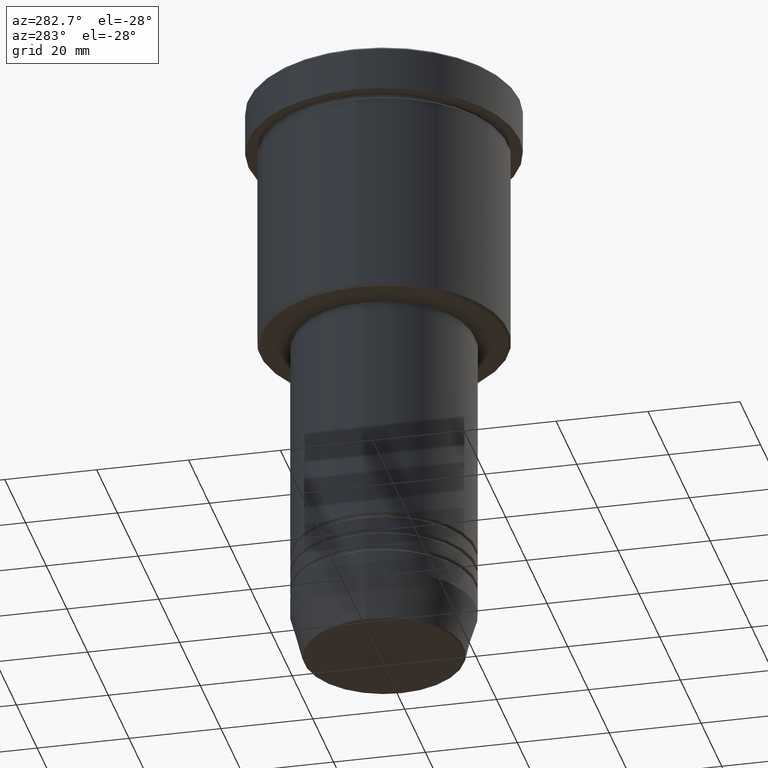
[diagram: clean part render]
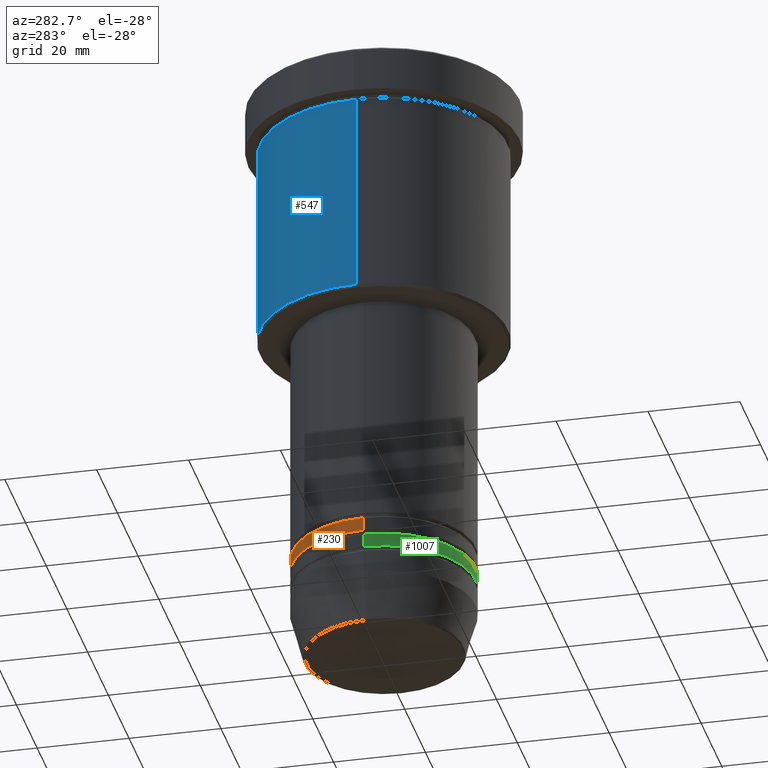
[diagram: same view with three faces highlighted in distinct colors, each labeled with its STEP entity id]
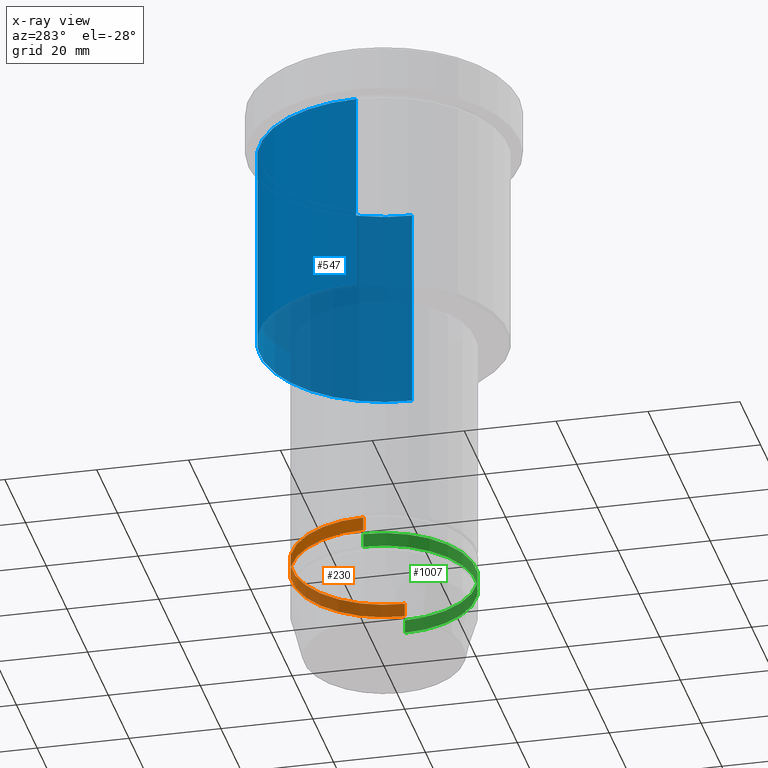
[diagram: x-ray of the same camera — body ghosted, the three highlighted faces saturated]
A machine part, auxiliary view with three faces highlighted in distinct colors.
The next image is the same camera in x-ray (body ghosted, the three faces saturated) — at least one of them is partly hidden behind the body in this view.
Their STEP definitions:

[orange] entity #230 — the highlighted cylindrical surface (partial cylindrical patch) has radius 20 mm, axis along (-0, -0, 1).
#9 = EDGE_CURVE ( 'NONE', #180, #1064, #184, .T. ) ;
#54 = ORIENTED_EDGE ( 'NONE', *, *, #905, .T. ) ;
#83 = CARTESIAN_POINT ( 'NONE',  ( -20.00000000000000355, 2.449293598294706907E-15, -110.9999999999999005 ) ) ;
#95 = DIRECTION ( 'NONE',  ( -0.000000000000000000, -0.000000000000000000, 1.000000000000000000 ) ) ;
#96 = EDGE_LOOP ( 'NONE', ( #54, #143, #1052, #241 ) ) ;
#141 = DIRECTION ( 'NONE',  ( -0.000000000000000000, -0.000000000000000000, 1.000000000000000000 ) ) ;
#143 = ORIENTED_EDGE ( 'NONE', *, *, #1159, .T. ) ;
#146 = DIRECTION ( 'NONE',  ( -0.000000000000000000, -0.000000000000000000, 1.000000000000000000 ) ) ;
#180 = VERTEX_POINT ( 'NONE', #306 ) ;
#184 = LINE ( 'NONE', #650, #366 ) ;
#230 = ADVANCED_FACE ( 'NONE', ( #966 ), #798, .T. ) ;
#241 = ORIENTED_EDGE ( 'NONE', *, *, #9, .F. ) ;
#306 = CARTESIAN_POINT ( 'NONE',  ( 20.00000000000000355, 0.000000000000000000, -110.9999999999999005 ) ) ;
#338 = CIRCLE ( 'NONE', #607, 20.00000000000000000 ) ;
#359 = CARTESIAN_POINT ( 'NONE',  ( -20.00000000000000355, 2.449293598294706907E-15, 0.000000000000000000 ) ) ;
#360 = VERTEX_POINT ( 'NONE', #83 ) ;
#366 = VECTOR ( 'NONE', #95, 1000.000000000000000 ) ;
#421 = DIRECTION ( 'NONE',  ( 1.000000000000000000, 0.000000000000000000, 0.000000000000000000 ) ) ;
#451 = LINE ( 'NONE', #359, #1066 ) ;
#529 = CARTESIAN_POINT ( 'NONE',  ( 0.000000000000000000, 0.000000000000000000, 0.000000000000000000 ) ) ;
#588 = CIRCLE ( 'NONE', #1065, 20.00000000000000355 ) ;
#607 = AXIS2_PLACEMENT_3D ( 'NONE', #664, #935, #1018 ) ;
#618 = CARTESIAN_POINT ( 'NONE',  ( 0.000000000000000000, 0.000000000000000000, -110.9999999999999005 ) ) ;
#650 = CARTESIAN_POINT ( 'NONE',  ( 20.00000000000000355, 0.000000000000000000, 0.000000000000000000 ) ) ;
#664 = CARTESIAN_POINT ( 'NONE',  ( 0.000000000000000000, 0.000000000000000000, -107.9999999999998863 ) ) ;
#712 = VERTEX_POINT ( 'NONE', #1057 ) ;
#798 = CYLINDRICAL_SURFACE ( 'NONE', #812, 20.00000000000000355 ) ;
#812 = AXIS2_PLACEMENT_3D ( 'NONE', #529, #146, #421 ) ;
#905 = EDGE_CURVE ( 'NONE', #180, #360, #588, .T. ) ;
#935 = DIRECTION ( 'NONE',  ( -0.000000000000000000, -0.000000000000000000, 1.000000000000000000 ) ) ;
#966 = FACE_OUTER_BOUND ( 'NONE', #96, .T. ) ;
#968 = CARTESIAN_POINT ( 'NONE',  ( 20.00000000000000000, 0.000000000000000000, -107.9999999999998863 ) ) ;
#988 = EDGE_CURVE ( 'NONE', #1064, #712, #338, .T. ) ;
#991 = DIRECTION ( 'NONE',  ( -0.000000000000000000, -0.000000000000000000, 1.000000000000000000 ) ) ;
#1018 = DIRECTION ( 'NONE',  ( 1.000000000000000000, 0.000000000000000000, 0.000000000000000000 ) ) ;
#1052 = ORIENTED_EDGE ( 'NONE', *, *, #988, .F. ) ;
#1057 = CARTESIAN_POINT ( 'NONE',  ( -20.00000000000000000, 2.449293598294706513E-15, -107.9999999999998863 ) ) ;
#1064 = VERTEX_POINT ( 'NONE', #968 ) ;
#1065 = AXIS2_PLACEMENT_3D ( 'NONE', #618, #141, #1153 ) ;
#1066 = VECTOR ( 'NONE', #991, 1000.000000000000000 ) ;
#1153 = DIRECTION ( 'NONE',  ( 1.000000000000000000, 0.000000000000000000, 0.000000000000000000 ) ) ;
#1159 = EDGE_CURVE ( 'NONE', #360, #712, #451, .T. ) ;

[blue] entity #547 — the highlighted cylindrical surface (partial cylindrical patch) has radius 27 mm, axis along (-0, -0, 1).
#2 = DIRECTION ( 'NONE',  ( -0.000000000000000000, -0.000000000000000000, 1.000000000000000000 ) ) ;
#30 = VERTEX_POINT ( 'NONE', #1179 ) ;
#91 = VERTEX_POINT ( 'NONE', #845 ) ;
#93 = CYLINDRICAL_SURFACE ( 'NONE', #516, 27.00000000000000355 ) ;
#114 = CIRCLE ( 'NONE', #167, 27.00000000000000355 ) ;
#116 = DIRECTION ( 'NONE',  ( -0.000000000000000000, -0.000000000000000000, 1.000000000000000000 ) ) ;
#150 = EDGE_CURVE ( 'NONE', #91, #568, #1117, .T. ) ;
#167 = AXIS2_PLACEMENT_3D ( 'NONE', #663, #1028, #188 ) ;
#178 = EDGE_CURVE ( 'NONE', #775, #568, #627, .T. ) ;
#188 = DIRECTION ( 'NONE',  ( -1.000000000000000000, 0.000000000000000000, 0.000000000000000000 ) ) ;
#204 = FACE_OUTER_BOUND ( 'NONE', #797, .T. ) ;
#208 = LINE ( 'NONE', #1122, #381 ) ;
#221 = ORIENTED_EDGE ( 'NONE', *, *, #541, .T. ) ;
#323 = CARTESIAN_POINT ( 'NONE',  ( -27.00000000000000355, 3.306546357697854128E-15, -10.99999999999999289 ) ) ;
#358 = CARTESIAN_POINT ( 'NONE',  ( 27.00000000000000355, 0.000000000000000000, -10.99999999999999289 ) ) ;
#381 = VECTOR ( 'NONE', #116, 1000.000000000000000 ) ;
#402 = CARTESIAN_POINT ( 'NONE',  ( 0.000000000000000000, 0.000000000000000000, -10.99999999999999289 ) ) ;
#481 = CARTESIAN_POINT ( 'NONE',  ( 0.000000000000000000, 0.000000000000000000, 0.000000000000000000 ) ) ;
#516 = AXIS2_PLACEMENT_3D ( 'NONE', #481, #2, #934 ) ;
#541 = EDGE_CURVE ( 'NONE', #30, #91, #114, .T. ) ;
#547 = ADVANCED_FACE ( 'NONE', ( #204 ), #93, .T. ) ;
#568 = VERTEX_POINT ( 'NONE', #323 ) ;
#581 = DIRECTION ( 'NONE',  ( -0.000000000000000000, -0.000000000000000000, 1.000000000000000000 ) ) ;
#627 = CIRCLE ( 'NONE', #1149, 27.00000000000000355 ) ;
#642 = VECTOR ( 'NONE', #581, 1000.000000000000000 ) ;
#663 = CARTESIAN_POINT ( 'NONE',  ( 0.000000000000000000, 0.000000000000000000, -55.50000000000005684 ) ) ;
#682 = ORIENTED_EDGE ( 'NONE', *, *, #150, .T. ) ;
#738 = CARTESIAN_POINT ( 'NONE',  ( -27.00000000000000355, 3.306546357697854128E-15, 0.000000000000000000 ) ) ;
#744 = DIRECTION ( 'NONE',  ( -0.000000000000000000, -0.000000000000000000, 1.000000000000000000 ) ) ;
#753 = DIRECTION ( 'NONE',  ( 1.000000000000000000, 0.000000000000000000, 0.000000000000000000 ) ) ;
#775 = VERTEX_POINT ( 'NONE', #358 ) ;
#797 = EDGE_LOOP ( 'NONE', ( #221, #682, #1041, #984 ) ) ;
#845 = CARTESIAN_POINT ( 'NONE',  ( -27.00000000000000355, 3.306546357697854128E-15, -55.50000000000005684 ) ) ;
#934 = DIRECTION ( 'NONE',  ( 1.000000000000000000, 0.000000000000000000, 0.000000000000000000 ) ) ;
#962 = EDGE_CURVE ( 'NONE', #30, #775, #208, .T. ) ;
#984 = ORIENTED_EDGE ( 'NONE', *, *, #962, .F. ) ;
#1028 = DIRECTION ( 'NONE',  ( -0.000000000000000000, -0.000000000000000000, 1.000000000000000000 ) ) ;
#1041 = ORIENTED_EDGE ( 'NONE', *, *, #178, .F. ) ;
#1117 = LINE ( 'NONE', #738, #642 ) ;
#1122 = CARTESIAN_POINT ( 'NONE',  ( 27.00000000000000355, 0.000000000000000000, 0.000000000000000000 ) ) ;
#1149 = AXIS2_PLACEMENT_3D ( 'NONE', #402, #744, #753 ) ;
#1179 = CARTESIAN_POINT ( 'NONE',  ( 27.00000000000000355, 0.000000000000000000, -55.50000000000005684 ) ) ;

[green] entity #1007 — the highlighted cylindrical surface (partial cylindrical patch) has radius 20 mm, axis along (-0, -0, 1).
#60 = VECTOR ( 'NONE', #649, 1000.000000000000000 ) ;
#76 = VERTEX_POINT ( 'NONE', #1075 ) ;
#102 = ORIENTED_EDGE ( 'NONE', *, *, #1133, .T. ) ;
#129 = AXIS2_PLACEMENT_3D ( 'NONE', #523, #687, #602 ) ;
#131 = CARTESIAN_POINT ( 'NONE',  ( 0.000000000000000000, 0.000000000000000000, -114.9999999999998863 ) ) ;
#156 = CARTESIAN_POINT ( 'NONE',  ( -20.00000000000000000, 2.449293598294706513E-15, 0.000000000000000000 ) ) ;
#215 = AXIS2_PLACEMENT_3D ( 'NONE', #131, #436, #1166 ) ;
#227 = CARTESIAN_POINT ( 'NONE',  ( 0.000000000000000000, 0.000000000000000000, 0.000000000000000000 ) ) ;
#236 = LINE ( 'NONE', #156, #869 ) ;
#242 = CYLINDRICAL_SURFACE ( 'NONE', #1046, 20.00000000000000000 ) ;
#250 = EDGE_CURVE ( 'NONE', #981, #76, #1084, .T. ) ;
#298 = CARTESIAN_POINT ( 'NONE',  ( -20.00000000000000000, 2.449293598294706513E-15, -111.9999999999998721 ) ) ;
#383 = ORIENTED_EDGE ( 'NONE', *, *, #250, .F. ) ;
#396 = CIRCLE ( 'NONE', #215, 20.00000000000000000 ) ;
#436 = DIRECTION ( 'NONE',  ( -0.000000000000000000, -0.000000000000000000, 1.000000000000000000 ) ) ;
#523 = CARTESIAN_POINT ( 'NONE',  ( 0.000000000000000000, 0.000000000000000000, -111.9999999999998721 ) ) ;
#557 = VERTEX_POINT ( 'NONE', #1094 ) ;
#601 = DIRECTION ( 'NONE',  ( -0.000000000000000000, -0.000000000000000000, 1.000000000000000000 ) ) ;
#602 = DIRECTION ( 'NONE',  ( 1.000000000000000000, 0.000000000000000000, 0.000000000000000000 ) ) ;
#649 = DIRECTION ( 'NONE',  ( -0.000000000000000000, -0.000000000000000000, 1.000000000000000000 ) ) ;
#672 = ORIENTED_EDGE ( 'NONE', *, *, #691, .F. ) ;
#687 = DIRECTION ( 'NONE',  ( -0.000000000000000000, -0.000000000000000000, 1.000000000000000000 ) ) ;
#691 = EDGE_CURVE ( 'NONE', #557, #981, #236, .T. ) ;
#714 = LINE ( 'NONE', #808, #60 ) ;
#808 = CARTESIAN_POINT ( 'NONE',  ( 20.00000000000000000, 0.000000000000000000, 0.000000000000000000 ) ) ;
#842 = ORIENTED_EDGE ( 'NONE', *, *, #936, .T. ) ;
#869 = VECTOR ( 'NONE', #891, 1000.000000000000000 ) ;
#891 = DIRECTION ( 'NONE',  ( -0.000000000000000000, -0.000000000000000000, 1.000000000000000000 ) ) ;
#936 = EDGE_CURVE ( 'NONE', #557, #1121, #396, .T. ) ;
#981 = VERTEX_POINT ( 'NONE', #298 ) ;
#1007 = ADVANCED_FACE ( 'NONE', ( #1050 ), #242, .T. ) ;
#1046 = AXIS2_PLACEMENT_3D ( 'NONE', #227, #601, #1059 ) ;
#1050 = FACE_OUTER_BOUND ( 'NONE', #1088, .T. ) ;
#1059 = DIRECTION ( 'NONE',  ( 1.000000000000000000, 0.000000000000000000, 0.000000000000000000 ) ) ;
#1075 = CARTESIAN_POINT ( 'NONE',  ( 20.00000000000000000, 0.000000000000000000, -111.9999999999998721 ) ) ;
#1084 = CIRCLE ( 'NONE', #129, 20.00000000000000000 ) ;
#1088 = EDGE_LOOP ( 'NONE', ( #672, #842, #102, #383 ) ) ;
#1094 = CARTESIAN_POINT ( 'NONE',  ( -20.00000000000000000, 2.449293598294706513E-15, -114.9999999999998863 ) ) ;
#1121 = VERTEX_POINT ( 'NONE', #1177 ) ;
#1133 = EDGE_CURVE ( 'NONE', #1121, #76, #714, .T. ) ;
#1166 = DIRECTION ( 'NONE',  ( 1.000000000000000000, 0.000000000000000000, 0.000000000000000000 ) ) ;
#1177 = CARTESIAN_POINT ( 'NONE',  ( 20.00000000000000000, 0.000000000000000000, -114.9999999999998863 ) ) ;